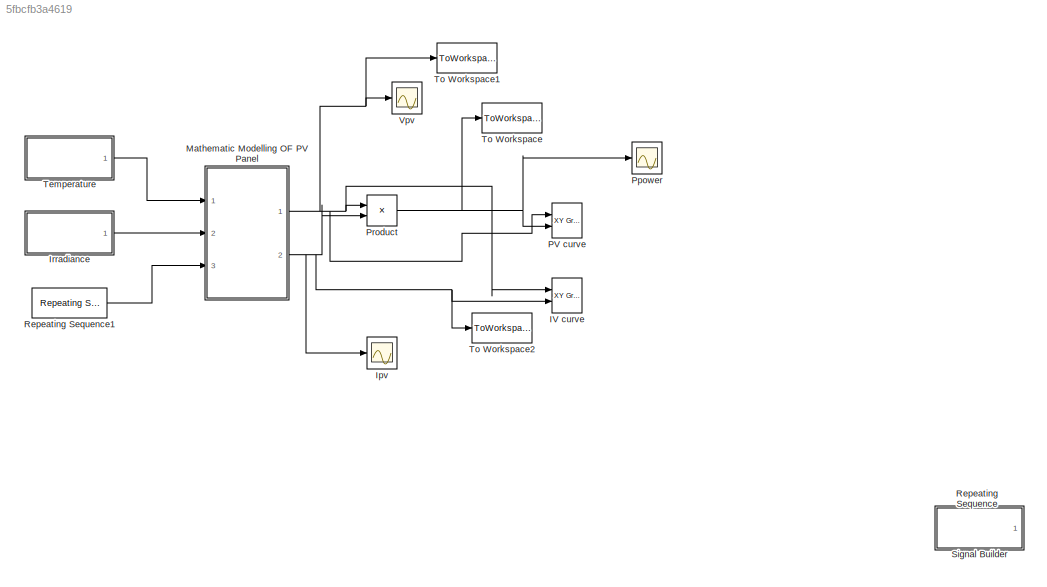
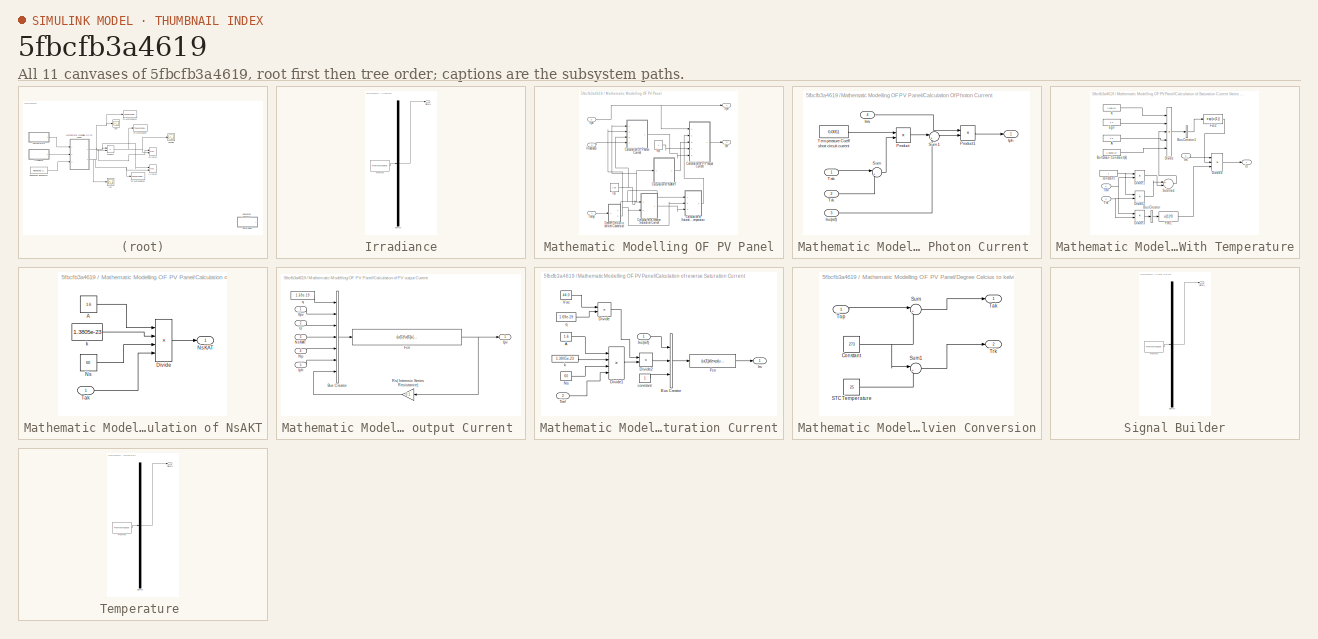
[diagram: thumbnail index - all 11 canvases of the model, root first then tree order]
MODEL slx_5fbcfb3a4619
KIND model
BLOCK [Reference] IV curve  REF=simulink/Sinks/XY Graph
  Ports = [2]
  SourceBlock = simulink/Sinks/XY Graph
  SourceType = XY scope.
  st = -1
  xmax = 1
  xmin = -1
  ymax = 1
  ymin = -1
BLOCK [Scope] Ipv
  Floating = off
  NumInputPorts = 1
  Ports = [1]
  SaveName = ScopeData1
  ShowLegends = off
BLOCK [SubSystem] Irradiance
  ClipboardFcn = sigbuilder_block('clipboard');
  CloseFcn = sigbuilder_block('close');
  ContinueFcn = sigbuilder_block('continue');
  CopyFcn = sigbuilder_block('copy');
  DeleteFcn = sigbuilder_block('delete');
  LoadFcn = sigbuilder_block('load');
  MaskHideContents = on
  ModelCloseFcn = sigbuilder_block('modelClose');
  NameChangeFcn = sigbuilder_block('namechange');
  OpenFcn = sigbuilder_block('open',[441 189.75 543 385.5 ]);
  PauseFcn = sigbuilder_block('pause');
  Ports = [0, 1]
  PreSaveFcn = sigbuilder_block('preSave');
  RequestExecContextInheritance = off
  StartFcn = sigbuilder_block('start');
  StopFcn = sigbuilder_block('stop');
  Tag = STV Subsys
BLOCK [Demux] Irradiance/Demux
  Outputs = 1
  Ports = [1, 1]
  Tag = STV Demux
BLOCK [FromWorkspace] Irradiance/FromWs
  SampleTime = 0
  Tag = STV FromWs
  VariableName = tuvar
  ZeroCross = on
BLOCK [Outport] Irradiance/Signal 1
  IconDisplay = Port number
  Tag = STV Outport
BLOCK [SubSystem] Mathematic Modelling OF PV Panel
  Ports = [3, 2]
  RequestExecContextInheritance = off
BLOCK [SubSystem] Mathematic Modelling OF PV Panel/Calculation Of Photon Current 
  Ports = [4, 1]
  RequestExecContextInheritance = off
BLOCK [Outport] Mathematic Modelling OF PV Panel/Calculation Of Photon Current /Iph
  IconDisplay = Port number
BLOCK [Inport] Mathematic Modelling OF PV Panel/Calculation Of Photon Current /Irra
  IconDisplay = Port number
  Port = 4
BLOCK [Inport] Mathematic Modelling OF PV Panel/Calculation Of Photon Current /Isc(ref)
  IconDisplay = Port number
  Port = 3
BLOCK [Product] Mathematic Modelling OF PV Panel/Calculation Of Photon Current /Product
  InputSameDT = off
  OutDataTypeStr = Inherit: Inherit via internal rule
  Ports = [2, 1]
  RndMeth = Floor
  SaturateOnIntegerOverflow = off
BLOCK [Product] Mathematic Modelling OF PV Panel/Calculation Of Photon Current /Product1
  InputSameDT = off
  OutDataTypeStr = Inherit: Inherit via internal rule
  Ports = [2, 1]
  RndMeth = Floor
  SaturateOnIntegerOverflow = off
BLOCK [Sum] Mathematic Modelling OF PV Panel/Calculation Of Photon Current /Sum
  IconShape = round
  InputSameDT = off
  Inputs = |+-
  OutDataTypeStr = Inherit: Inherit via internal rule
  Ports = [2, 1]
  SaturateOnIntegerOverflow = off
BLOCK [Sum] Mathematic Modelling OF PV Panel/Calculation Of Photon Current /Sum1
  IconShape = round
  InputSameDT = off
  Inputs = |++
  OutDataTypeStr = Inherit: Inherit via internal rule
  Ports = [2, 1]
  SaturateOnIntegerOverflow = off
BLOCK [Inport] Mathematic Modelling OF PV Panel/Calculation Of Photon Current /Tak
  IconDisplay = Port number
BLOCK [Constant] Mathematic Modelling OF PV Panel/Calculation Of Photon Current /Temperature Coeff short circuit current 
  Value = 0.0051
BLOCK [Inport] Mathematic Modelling OF PV Panel/Calculation Of Photon Current /Trk
  IconDisplay = Port number
  Port = 2
BLOCK [SubSystem] Mathematic Modelling OF PV Panel/Calculation of NsAKT
  Ports = [1, 1]
  RequestExecContextInheritance = off
BLOCK [Constant] Mathematic Modelling OF PV Panel/Calculation of NsAKT/A
  Value = 1.6
BLOCK [Product] Mathematic Modelling OF PV Panel/Calculation of NsAKT/Divide
  InputSameDT = off
  Inputs = ****
  OutDataTypeStr = Inherit: Inherit via internal rule
  Ports = [4, 1]
  RndMeth = Floor
  SaturateOnIntegerOverflow = off
BLOCK [Constant] Mathematic Modelling OF PV Panel/Calculation of NsAKT/Ns
  Value = 60
BLOCK [Outport] Mathematic Modelling OF PV Panel/Calculation of NsAKT/NsKAT
  IconDisplay = Port number
BLOCK [Inport] Mathematic Modelling OF PV Panel/Calculation of NsAKT/Tak 
  IconDisplay = Port number
BLOCK [Constant] Mathematic Modelling OF PV Panel/Calculation of NsAKT/k
  Value = 1.3805e-23
BLOCK [SubSystem] Mathematic Modelling OF PV Panel/Calculation of PV output Current 
  Ports = [5, 1]
  RequestExecContextInheritance = off
BLOCK [BusCreator] Mathematic Modelling OF PV Panel/Calculation of PV output Current /Bus Creator
  DisplayOption = bar
  Inputs = 7
  Ports = [7, 1]
BLOCK [Fcn] Mathematic Modelling OF PV Panel/Calculation of PV output Current /Fcn
  Expr = (u(5)*u(6))-(u(5)*u(3)*(exp((u(1)*(u(2)+u(7)))/(u(4))-1)
BLOCK [Inport] Mathematic Modelling OF PV Panel/Calculation of PV output Current /Iph
  IconDisplay = Port number
  Port = 5
BLOCK [Outport] Mathematic Modelling OF PV Panel/Calculation of PV output Current /Ipv 
  IconDisplay = Port number
BLOCK [Inport] Mathematic Modelling OF PV Panel/Calculation of PV output Current /Is
  IconDisplay = Port number
  Port = 2
BLOCK [Inport] Mathematic Modelling OF PV Panel/Calculation of PV output Current /Np
  IconDisplay = Port number
  Port = 4
BLOCK [Inport] Mathematic Modelling OF PV Panel/Calculation of PV output Current /NsKAT
  IconDisplay = Port number
  Port = 3
BLOCK [Gain] Mathematic Modelling OF PV Panel/Calculation of PV output Current /Rs( Internsic Series Resistance)
  Gain = 0.1
  OutDataTypeStr = Inherit: Inherit via internal rule
  ParamDataTypeStr = Inherit: Inherit via internal rule
  SaturateOnIntegerOverflow = off
BLOCK [Inport] Mathematic Modelling OF PV Panel/Calculation of PV output Current /Vpv
  IconDisplay = Port number
BLOCK [Constant] Mathematic Modelling OF PV Panel/Calculation of PV output Current /q
  Value = 1.69e-19
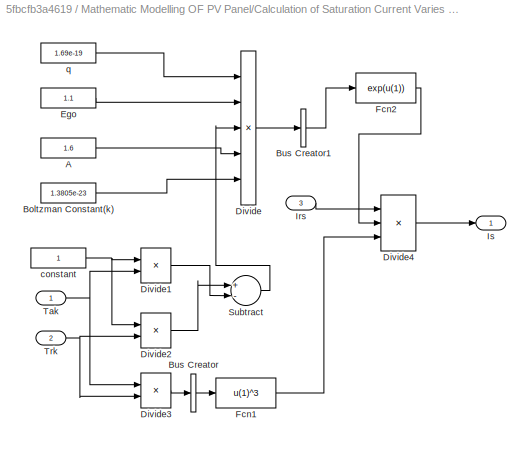
BLOCK [SubSystem] Mathematic Modelling OF PV Panel/Calculation of Saturation Current Varies With Temperature
  Ports = [3, 1]
  RequestExecContextInheritance = off
BLOCK [Constant] Mathematic Modelling OF PV Panel/Calculation of Saturation Current Varies With Temperature/A 
  Value = 1.6
BLOCK [Constant] Mathematic Modelling OF PV Panel/Calculation of Saturation Current Varies With Temperature/Boltzman Constant(k)
  Value = 1.3805e-23
BLOCK [BusCreator] Mathematic Modelling OF PV Panel/Calculation of Saturation Current Varies With Temperature/Bus Creator
  DisplayOption = bar
  Inputs = 1
  Ports = [1, 1]
BLOCK [BusCreator] Mathematic Modelling OF PV Panel/Calculation of Saturation Current Varies With Temperature/Bus Creator1
  DisplayOption = bar
  Inputs = 1
  Ports = [1, 1]
BLOCK [Product] Mathematic Modelling OF PV Panel/Calculation of Saturation Current Varies With Temperature/Divide
  InputSameDT = off
  Inputs = ***//
  OutDataTypeStr = Inherit: Inherit via internal rule
  Ports = [5, 1]
  RndMeth = Floor
  SaturateOnIntegerOverflow = off
BLOCK [Product] Mathematic Modelling OF PV Panel/Calculation of Saturation Current Varies With Temperature/Divide1
  InputSameDT = off
  Inputs = */
  OutDataTypeStr = Inherit: Inherit via internal rule
  Ports = [2, 1]
  RndMeth = Floor
  SaturateOnIntegerOverflow = off
BLOCK [Product] Mathematic Modelling OF PV Panel/Calculation of Saturation Current Varies With Temperature/Divide2
  InputSameDT = off
  Inputs = */
  OutDataTypeStr = Inherit: Inherit via internal rule
  Ports = [2, 1]
  RndMeth = Floor
  SaturateOnIntegerOverflow = off
BLOCK [Product] Mathematic Modelling OF PV Panel/Calculation of Saturation Current Varies With Temperature/Divide3
  InputSameDT = off
  Inputs = */
  OutDataTypeStr = Inherit: Inherit via internal rule
  Ports = [2, 1]
  RndMeth = Floor
  SaturateOnIntegerOverflow = off
BLOCK [Product] Mathematic Modelling OF PV Panel/Calculation of Saturation Current Varies With Temperature/Divide4
  InputSameDT = off
  Inputs = ***
  OutDataTypeStr = Inherit: Inherit via internal rule
  Ports = [3, 1]
  RndMeth = Floor
  SaturateOnIntegerOverflow = off
BLOCK [Constant] Mathematic Modelling OF PV Panel/Calculation of Saturation Current Varies With Temperature/Ego
  Value = 1.1
BLOCK [Fcn] Mathematic Modelling OF PV Panel/Calculation of Saturation Current Varies With Temperature/Fcn1
  Expr = u(1)^3
BLOCK [Fcn] Mathematic Modelling OF PV Panel/Calculation of Saturation Current Varies With Temperature/Fcn2
  Expr = exp(u(1))
BLOCK [Inport] Mathematic Modelling OF PV Panel/Calculation of Saturation Current Varies With Temperature/Irs 
  IconDisplay = Port number
  Port = 3
BLOCK [Outport] Mathematic Modelling OF PV Panel/Calculation of Saturation Current Varies With Temperature/Is
  IconDisplay = Port number
BLOCK [Sum] Mathematic Modelling OF PV Panel/Calculation of Saturation Current Varies With Temperature/Subtract
  InputSameDT = off
  Inputs = +-
  OutDataTypeStr = Inherit: Inherit via internal rule
  Ports = [2, 1]
  SaturateOnIntegerOverflow = off
BLOCK [Inport] Mathematic Modelling OF PV Panel/Calculation of Saturation Current Varies With Temperature/Tak
  IconDisplay = Port number
BLOCK [Inport] Mathematic Modelling OF PV Panel/Calculation of Saturation Current Varies With Temperature/Trk 
  IconDisplay = Port number
  Port = 2
BLOCK [Constant] Mathematic Modelling OF PV Panel/Calculation of Saturation Current Varies With Temperature/constant 
BLOCK [Constant] Mathematic Modelling OF PV Panel/Calculation of Saturation Current Varies With Temperature/q 
  Value = 1.69e-19
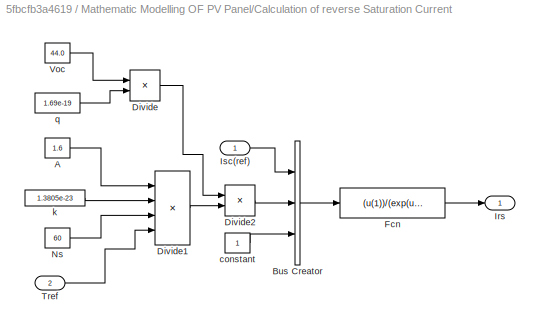
BLOCK [SubSystem] Mathematic Modelling OF PV Panel/Calculation of reverse Saturation Current
  Ports = [2, 1]
  RequestExecContextInheritance = off
BLOCK [Constant] Mathematic Modelling OF PV Panel/Calculation of reverse Saturation Current/A
  Value = 1.6
BLOCK [BusCreator] Mathematic Modelling OF PV Panel/Calculation of reverse Saturation Current/Bus Creator
  DisplayOption = bar
  Inputs = 3
  Ports = [3, 1]
BLOCK [Product] Mathematic Modelling OF PV Panel/Calculation of reverse Saturation Current/Divide
  InputSameDT = off
  Inputs = **
  OutDataTypeStr = Inherit: Inherit via internal rule
  Ports = [2, 1]
  RndMeth = Floor
  SaturateOnIntegerOverflow = off
BLOCK [Product] Mathematic Modelling OF PV Panel/Calculation of reverse Saturation Current/Divide1
  InputSameDT = off
  Inputs = ****
  OutDataTypeStr = Inherit: Inherit via internal rule
  Ports = [4, 1]
  RndMeth = Floor
  SaturateOnIntegerOverflow = off
BLOCK [Product] Mathematic Modelling OF PV Panel/Calculation of reverse Saturation Current/Divide2
  InputSameDT = off
  Inputs = */
  OutDataTypeStr = Inherit: Inherit via internal rule
  Ports = [2, 1]
  RndMeth = Floor
  SaturateOnIntegerOverflow = off
BLOCK [Fcn] Mathematic Modelling OF PV Panel/Calculation of reverse Saturation Current/Fcn
  Expr = (u(1))/(exp(u(2))-u(3))
BLOCK [Outport] Mathematic Modelling OF PV Panel/Calculation of reverse Saturation Current/Irs
  IconDisplay = Port number
BLOCK [Inport] Mathematic Modelling OF PV Panel/Calculation of reverse Saturation Current/Isc(ref) 
  IconDisplay = Port number
BLOCK [Constant] Mathematic Modelling OF PV Panel/Calculation of reverse Saturation Current/Ns
  Value = 60
BLOCK [Inport] Mathematic Modelling OF PV Panel/Calculation of reverse Saturation Current/Tref 
  IconDisplay = Port number
  Port = 2
BLOCK [Constant] Mathematic Modelling OF PV Panel/Calculation of reverse Saturation Current/Voc
  Value = 44.0
BLOCK [Constant] Mathematic Modelling OF PV Panel/Calculation of reverse Saturation Current/constant 
BLOCK [Constant] Mathematic Modelling OF PV Panel/Calculation of reverse Saturation Current/k
  Value = 1.3805e-23
BLOCK [Constant] Mathematic Modelling OF PV Panel/Calculation of reverse Saturation Current/q
  Value = 1.69e-19
BLOCK [SubSystem] Mathematic Modelling OF PV Panel/Degree Celcius to kelvien Conversion
  Ports = [1, 2]
  RequestExecContextInheritance = off
BLOCK [Constant] Mathematic Modelling OF PV Panel/Degree Celcius to kelvien Conversion/Constant
  Value = 273
BLOCK [Constant] Mathematic Modelling OF PV Panel/Degree Celcius to kelvien Conversion/STC Temperature
  Value = 25
BLOCK [Sum] Mathematic Modelling OF PV Panel/Degree Celcius to kelvien Conversion/Sum
  IconShape = round
  InputSameDT = off
  Inputs = |++
  OutDataTypeStr = Inherit: Inherit via internal rule
  Ports = [2, 1]
  SaturateOnIntegerOverflow = off
BLOCK [Sum] Mathematic Modelling OF PV Panel/Degree Celcius to kelvien Conversion/Sum1
  IconShape = round
  InputSameDT = off
  Inputs = |++
  OutDataTypeStr = Inherit: Inherit via internal rule
  Ports = [2, 1]
  SaturateOnIntegerOverflow = off
BLOCK [Outport] Mathematic Modelling OF PV Panel/Degree Celcius to kelvien Conversion/Tak
  IconDisplay = Port number
BLOCK [Inport] Mathematic Modelling OF PV Panel/Degree Celcius to kelvien Conversion/Top 
  IconDisplay = Port number
BLOCK [Outport] Mathematic Modelling OF PV Panel/Degree Celcius to kelvien Conversion/Trk
  IconDisplay = Port number
  Port = 2
BLOCK [Outport] Mathematic Modelling OF PV Panel/Ipv
  IconDisplay = Port number
  Port = 2
BLOCK [Inport] Mathematic Modelling OF PV Panel/Irradiance
  IconDisplay = Port number
  Port = 2
BLOCK [Constant] Mathematic Modelling OF PV Panel/Isc
  Value = 7.58
BLOCK [Constant] Mathematic Modelling OF PV Panel/Np
BLOCK [Inport] Mathematic Modelling OF PV Panel/Temp
  IconDisplay = Port number
BLOCK [Inport] Mathematic Modelling OF PV Panel/Vpv
  IconDisplay = Port number
  Port = 3
BLOCK [Outport] Mathematic Modelling OF PV Panel/Vpv 
  IconDisplay = Port number
BLOCK [Reference] PV curve  REF=simulink/Sinks/XY Graph
  Ports = [2]
  SourceBlock = simulink/Sinks/XY Graph
  SourceType = XY scope.
  st = -1
  xmax = 1
  xmin = -1
  ymax = 1
  ymin = -1
BLOCK [Scope] Ppower 
  Floating = off
  NumInputPorts = 1
  Ports = [1]
  SaveName = ScopeData2
  ShowLegends = off
BLOCK [Product] Product
  InputSameDT = off
  OutDataTypeStr = Inherit: Inherit via internal rule
  Ports = [2, 1]
  RndMeth = Floor
  SaturateOnIntegerOverflow = off
BLOCK [Reference] Repeating Sequence  REF=simulink/Sources/Repeating
Sequence
  Ports = [0, 1]
  SourceBlock = simulink/Sources/Repeating\nSequence
  SourceType = Repeating table
  rep_seq_t = [0 2]
  rep_seq_y = [0 2]
BLOCK [Reference] Repeating Sequence1  REF=simulink/Sources/Repeating
Sequence
  Ports = [0, 1]
  SourceBlock = simulink/Sources/Repeating\nSequence
  SourceType = Repeating table
  rep_seq_t = [0 2]
  rep_seq_y = [0 2]
BLOCK [SubSystem] Signal Builder
  ClipboardFcn = sigbuilder_block('clipboard');
  CloseFcn = sigbuilder_block('close');
  ContinueFcn = sigbuilder_block('continue');
  CopyFcn = sigbuilder_block('copy');
  DeleteFcn = sigbuilder_block('delete');
  LoadFcn = sigbuilder_block('load');
  MaskHideContents = on
  ModelCloseFcn = sigbuilder_block('modelClose');
  NameChangeFcn = sigbuilder_block('namechange');
  OpenFcn = sigbuilder_block('open',[437.6 199.2 550.4 400 ]);
  PauseFcn = sigbuilder_block('pause');
  Ports = [0, 1]
  PreSaveFcn = sigbuilder_block('preSave');
  RequestExecContextInheritance = off
  StartFcn = sigbuilder_block('start');
  StopFcn = sigbuilder_block('stop');
  Tag = STV Subsys
BLOCK [Demux] Signal Builder/Demux
  Outputs = 1
  Ports = [1, 1]
  Tag = STV Demux
BLOCK [FromWorkspace] Signal Builder/FromWs
  SampleTime = 0
  Tag = STV FromWs
  VariableName = tuvar
  ZeroCross = on
BLOCK [Outport] Signal Builder/Signal 1
  IconDisplay = Port number
  Tag = STV Outport
BLOCK [SubSystem] Temperature 
  ClipboardFcn = sigbuilder_block('clipboard');
  CloseFcn = sigbuilder_block('close');
  ContinueFcn = sigbuilder_block('continue');
  CopyFcn = sigbuilder_block('copy');
  DeleteFcn = sigbuilder_block('delete');
  LoadFcn = sigbuilder_block('load');
  MaskHideContents = on
  ModelCloseFcn = sigbuilder_block('modelClose');
  NameChangeFcn = sigbuilder_block('namechange');
  OpenFcn = sigbuilder_block('open',[351 -51.75 543 385.5 ]);
  PauseFcn = sigbuilder_block('pause');
  Ports = [0, 1]
  PreSaveFcn = sigbuilder_block('preSave');
  RequestExecContextInheritance = off
  StartFcn = sigbuilder_block('start');
  StopFcn = sigbuilder_block('stop');
  Tag = STV Subsys
BLOCK [Demux] Temperature /Demux
  Outputs = 1
  Ports = [1, 1]
  Tag = STV Demux
BLOCK [FromWorkspace] Temperature /FromWs
  SampleTime = 0
  Tag = STV FromWs
  VariableName = tuvar
  ZeroCross = on
BLOCK [Outport] Temperature /Signal 1
  IconDisplay = Port number
  Tag = STV Outport
BLOCK [ToWorkspace] To Workspace
  FixptAsFi = on
  MaxDataPoints = inf
  Ports = [1]
  SampleTime = -1
  Save2DSignal = 3-D array (concatenate along third dimension)
  SaveFormat = Timeseries
  VariableName = Ppv
BLOCK [ToWorkspace] To Workspace1
  FixptAsFi = on
  MaxDataPoints = inf
  Ports = [1]
  SampleTime = -1
  Save2DSignal = 3-D array (concatenate along third dimension)
  SaveFormat = Timeseries
  VariableName = Vpv
BLOCK [ToWorkspace] To Workspace2
  FixptAsFi = on
  MaxDataPoints = inf
  Ports = [1]
  SampleTime = -1
  Save2DSignal = 3-D array (concatenate along third dimension)
  SaveFormat = Timeseries
  VariableName = Ipv
BLOCK [Scope] Vpv
  Floating = off
  NumInputPorts = 1
  Ports = [1]
  ShowLegends = off
LINE Irradiance:1 -> Mathematic Modelling OF PV Panel:2
LINE Mathematic Modelling OF PV Panel/Calculation Of Photon Current /Irra:1 -> Mathematic Modelling OF PV Panel/Calculation Of Photon Current /Product1:1
LINE Mathematic Modelling OF PV Panel/Calculation Of Photon Current /Isc(ref):1 -> Mathematic Modelling OF PV Panel/Calculation Of Photon Current /Sum1:2
LINE Mathematic Modelling OF PV Panel/Calculation Of Photon Current /Product1:1 -> Mathematic Modelling OF PV Panel/Calculation Of Photon Current /Iph:1
LINE Mathematic Modelling OF PV Panel/Calculation Of Photon Current /Product:1 -> Mathematic Modelling OF PV Panel/Calculation Of Photon Current /Sum1:1
LINE Mathematic Modelling OF PV Panel/Calculation Of Photon Current /Sum1:1 -> Mathematic Modelling OF PV Panel/Calculation Of Photon Current /Product1:2
LINE Mathematic Modelling OF PV Panel/Calculation Of Photon Current /Sum:1 -> Mathematic Modelling OF PV Panel/Calculation Of Photon Current /Product:2
LINE Mathematic Modelling OF PV Panel/Calculation Of Photon Current /Tak:1 -> Mathematic Modelling OF PV Panel/Calculation Of Photon Current /Sum:1
LINE Mathematic Modelling OF PV Panel/Calculation Of Photon Current /Temperature Coeff short circuit current :1 -> Mathematic Modelling OF PV Panel/Calculation Of Photon Current /Product:1
LINE Mathematic Modelling OF PV Panel/Calculation Of Photon Current /Trk:1 -> Mathematic Modelling OF PV Panel/Calculation Of Photon Current /Sum:2
LINE Mathematic Modelling OF PV Panel/Calculation Of Photon Current :1 -> Mathematic Modelling OF PV Panel/Calculation of PV output Current :5
LINE Mathematic Modelling OF PV Panel/Calculation of NsAKT/A:1 -> Mathematic Modelling OF PV Panel/Calculation of NsAKT/Divide:1
LINE Mathematic Modelling OF PV Panel/Calculation of NsAKT/Divide:1 -> Mathematic Modelling OF PV Panel/Calculation of NsAKT/NsKAT:1
LINE Mathematic Modelling OF PV Panel/Calculation of NsAKT/Ns:1 -> Mathematic Modelling OF PV Panel/Calculation of NsAKT/Divide:3
LINE Mathematic Modelling OF PV Panel/Calculation of NsAKT/Tak :1 -> Mathematic Modelling OF PV Panel/Calculation of NsAKT/Divide:4
LINE Mathematic Modelling OF PV Panel/Calculation of NsAKT/k:1 -> Mathematic Modelling OF PV Panel/Calculation of NsAKT/Divide:2
LINE Mathematic Modelling OF PV Panel/Calculation of NsAKT:1 -> Mathematic Modelling OF PV Panel/Calculation of PV output Current :3
LINE Mathematic Modelling OF PV Panel/Calculation of PV output Current /Bus Creator:1 -> Mathematic Modelling OF PV Panel/Calculation of PV output Current /Fcn:1
NET Mathematic Modelling OF PV Panel/Calculation of PV output Current /Fcn:1 -> Mathematic Modelling OF PV Panel/Calculation of PV output Current /Ipv :1, Mathematic Modelling OF PV Panel/Calculation of PV output Current /Rs( Internsic Series Resistance):1
LINE Mathematic Modelling OF PV Panel/Calculation of PV output Current /Iph:1 -> Mathematic Modelling OF PV Panel/Calculation of PV output Current /Bus Creator:6
LINE Mathematic Modelling OF PV Panel/Calculation of PV output Current /Is:1 -> Mathematic Modelling OF PV Panel/Calculation of PV output Current /Bus Creator:3
LINE Mathematic Modelling OF PV Panel/Calculation of PV output Current /Np:1 -> Mathematic Modelling OF PV Panel/Calculation of PV output Current /Bus Creator:5
LINE Mathematic Modelling OF PV Panel/Calculation of PV output Current /NsKAT:1 -> Mathematic Modelling OF PV Panel/Calculation of PV output Current /Bus Creator:4
LINE Mathematic Modelling OF PV Panel/Calculation of PV output Current /Rs( Internsic Series Resistance):1 -> Mathematic Modelling OF PV Panel/Calculation of PV output Current /Bus Creator:7
LINE Mathematic Modelling OF PV Panel/Calculation of PV output Current /Vpv:1 -> Mathematic Modelling OF PV Panel/Calculation of PV output Current /Bus Creator:2
LINE Mathematic Modelling OF PV Panel/Calculation of PV output Current /q:1 -> Mathematic Modelling OF PV Panel/Calculation of PV output Current /Bus Creator:1
LINE Mathematic Modelling OF PV Panel/Calculation of PV output Current :1 -> Mathematic Modelling OF PV Panel/Ipv:1
LINE Mathematic Modelling OF PV Panel/Calculation of Saturation Current Varies With Temperature/A :1 -> Mathematic Modelling OF PV Panel/Calculation of Saturation Current Varies With Temperature/Divide:4
LINE Mathematic Modelling OF PV Panel/Calculation of Saturation Current Varies With Temperature/Boltzman Constant(k):1 -> Mathematic Modelling OF PV Panel/Calculation of Saturation Current Varies With Temperature/Divide:5
LINE Mathematic Modelling OF PV Panel/Calculation of Saturation Current Varies With Temperature/Bus Creator1:1 -> Mathematic Modelling OF PV Panel/Calculation of Saturation Current Varies With Temperature/Fcn2:1
LINE Mathematic Modelling OF PV Panel/Calculation of Saturation Current Varies With Temperature/Bus Creator:1 -> Mathematic Modelling OF PV Panel/Calculation of Saturation Current Varies With Temperature/Fcn1:1
LINE Mathematic Modelling OF PV Panel/Calculation of Saturation Current Varies With Temperature/Divide1:1 -> Mathematic Modelling OF PV Panel/Calculation of Saturation Current Varies With Temperature/Subtract:2
LINE Mathematic Modelling OF PV Panel/Calculation of Saturation Current Varies With Temperature/Divide2:1 -> Mathematic Modelling OF PV Panel/Calculation of Saturation Current Varies With Temperature/Subtract:1
LINE Mathematic Modelling OF PV Panel/Calculation of Saturation Current Varies With Temperature/Divide3:1 -> Mathematic Modelling OF PV Panel/Calculation of Saturation Current Varies With Temperature/Bus Creator:1
LINE Mathematic Modelling OF PV Panel/Calculation of Saturation Current Varies With Temperature/Divide4:1 -> Mathematic Modelling OF PV Panel/Calculation of Saturation Current Varies With Temperature/Is:1
LINE Mathematic Modelling OF PV Panel/Calculation of Saturation Current Varies With Temperature/Divide:1 -> Mathematic Modelling OF PV Panel/Calculation of Saturation Current Varies With Temperature/Bus Creator1:1
LINE Mathematic Modelling OF PV Panel/Calculation of Saturation Current Varies With Temperature/Ego:1 -> Mathematic Modelling OF PV Panel/Calculation of Saturation Current Varies With Temperature/Divide:2
LINE Mathematic Modelling OF PV Panel/Calculation of Saturation Current Varies With Temperature/Fcn1:1 -> Mathematic Modelling OF PV Panel/Calculation of Saturation Current Varies With Temperature/Divide4:3
LINE Mathematic Modelling OF PV Panel/Calculation of Saturation Current Varies With Temperature/Fcn2:1 -> Mathematic Modelling OF PV Panel/Calculation of Saturation Current Varies With Temperature/Divide4:2
LINE Mathematic Modelling OF PV Panel/Calculation of Saturation Current Varies With Temperature/Irs :1 -> Mathematic Modelling OF PV Panel/Calculation of Saturation Current Varies With Temperature/Divide4:1
LINE Mathematic Modelling OF PV Panel/Calculation of Saturation Current Varies With Temperature/Subtract:1 -> Mathematic Modelling OF PV Panel/Calculation of Saturation Current Varies With Temperature/Divide:3
NET Mathematic Modelling OF PV Panel/Calculation of Saturation Current Varies With Temperature/Tak:1 -> Mathematic Modelling OF PV Panel/Calculation of Saturation Current Varies With Temperature/Divide1:2, Mathematic Modelling OF PV Panel/Calculation of Saturation Current Varies With Temperature/Divide3:1
NET Mathematic Modelling OF PV Panel/Calculation of Saturation Current Varies With Temperature/Trk :1 -> Mathematic Modelling OF PV Panel/Calculation of Saturation Current Varies With Temperature/Divide2:2, Mathematic Modelling OF PV Panel/Calculation of Saturation Current Varies With Temperature/Divide3:2
NET Mathematic Modelling OF PV Panel/Calculation of Saturation Current Varies With Temperature/constant :1 -> Mathematic Modelling OF PV Panel/Calculation of Saturation Current Varies With Temperature/Divide1:1, Mathematic Modelling OF PV Panel/Calculation of Saturation Current Varies With Temperature/Divide2:1
LINE Mathematic Modelling OF PV Panel/Calculation of Saturation Current Varies With Temperature/q :1 -> Mathematic Modelling OF PV Panel/Calculation of Saturation Current Varies With Temperature/Divide:1
LINE Mathematic Modelling OF PV Panel/Calculation of Saturation Current Varies With Temperature:1 -> Mathematic Modelling OF PV Panel/Calculation of PV output Current :2
LINE Mathematic Modelling OF PV Panel/Calculation of reverse Saturation Current/A:1 -> Mathematic Modelling OF PV Panel/Calculation of reverse Saturation Current/Divide1:1
LINE Mathematic Modelling OF PV Panel/Calculation of reverse Saturation Current/Bus Creator:1 -> Mathematic Modelling OF PV Panel/Calculation of reverse Saturation Current/Fcn:1
LINE Mathematic Modelling OF PV Panel/Calculation of reverse Saturation Current/Divide1:1 -> Mathematic Modelling OF PV Panel/Calculation of reverse Saturation Current/Divide2:2
LINE Mathematic Modelling OF PV Panel/Calculation of reverse Saturation Current/Divide2:1 -> Mathematic Modelling OF PV Panel/Calculation of reverse Saturation Current/Bus Creator:2
LINE Mathematic Modelling OF PV Panel/Calculation of reverse Saturation Current/Divide:1 -> Mathematic Modelling OF PV Panel/Calculation of reverse Saturation Current/Divide2:1
LINE Mathematic Modelling OF PV Panel/Calculation of reverse Saturation Current/Fcn:1 -> Mathematic Modelling OF PV Panel/Calculation of reverse Saturation Current/Irs:1
LINE Mathematic Modelling OF PV Panel/Calculation of reverse Saturation Current/Isc(ref) :1 -> Mathematic Modelling OF PV Panel/Calculation of reverse Saturation Current/Bus Creator:1
LINE Mathematic Modelling OF PV Panel/Calculation of reverse Saturation Current/Ns:1 -> Mathematic Modelling OF PV Panel/Calculation of reverse Saturation Current/Divide1:3
LINE Mathematic Modelling OF PV Panel/Calculation of reverse Saturation Current/Tref :1 -> Mathematic Modelling OF PV Panel/Calculation of reverse Saturation Current/Divide1:4
LINE Mathematic Modelling OF PV Panel/Calculation of reverse Saturation Current/Voc:1 -> Mathematic Modelling OF PV Panel/Calculation of reverse Saturation Current/Divide:1
LINE Mathematic Modelling OF PV Panel/Calculation of reverse Saturation Current/constant :1 -> Mathematic Modelling OF PV Panel/Calculation of reverse Saturation Current/Bus Creator:3
LINE Mathematic Modelling OF PV Panel/Calculation of reverse Saturation Current/k:1 -> Mathematic Modelling OF PV Panel/Calculation of reverse Saturation Current/Divide1:2
LINE Mathematic Modelling OF PV Panel/Calculation of reverse Saturation Current/q:1 -> Mathematic Modelling OF PV Panel/Calculation of reverse Saturation Current/Divide:2
LINE Mathematic Modelling OF PV Panel/Calculation of reverse Saturation Current:1 -> Mathematic Modelling OF PV Panel/Calculation of Saturation Current Varies With Temperature:3
NET Mathematic Modelling OF PV Panel/Degree Celcius to kelvien Conversion/Constant:1 -> Mathematic Modelling OF PV Panel/Degree Celcius to kelvien Conversion/Sum1:1, Mathematic Modelling OF PV Panel/Degree Celcius to kelvien Conversion/Sum:2
LINE Mathematic Modelling OF PV Panel/Degree Celcius to kelvien Conversion/STC Temperature:1 -> Mathematic Modelling OF PV Panel/Degree Celcius to kelvien Conversion/Sum1:2
LINE Mathematic Modelling OF PV Panel/Degree Celcius to kelvien Conversion/Sum1:1 -> Mathematic Modelling OF PV Panel/Degree Celcius to kelvien Conversion/Trk:1
LINE Mathematic Modelling OF PV Panel/Degree Celcius to kelvien Conversion/Sum:1 -> Mathematic Modelling OF PV Panel/Degree Celcius to kelvien Conversion/Tak:1
LINE Mathematic Modelling OF PV Panel/Degree Celcius to kelvien Conversion/Top :1 -> Mathematic Modelling OF PV Panel/Degree Celcius to kelvien Conversion/Sum:1
NET Mathematic Modelling OF PV Panel/Degree Celcius to kelvien Conversion:1 -> Mathematic Modelling OF PV Panel/Calculation Of Photon Current :1, Mathematic Modelling OF PV Panel/Calculation of NsAKT:1, Mathematic Modelling OF PV Panel/Calculation of Saturation Current Varies With Temperature:1
NET Mathematic Modelling OF PV Panel/Degree Celcius to kelvien Conversion:2 -> Mathematic Modelling OF PV Panel/Calculation Of Photon Current :2, Mathematic Modelling OF PV Panel/Calculation of Saturation Current Varies With Temperature:2, Mathematic Modelling OF PV Panel/Calculation of reverse Saturation Current:2
LINE Mathematic Modelling OF PV Panel/Irradiance:1 -> Mathematic Modelling OF PV Panel/Calculation Of Photon Current :4
NET Mathematic Modelling OF PV Panel/Isc:1 -> Mathematic Modelling OF PV Panel/Calculation Of Photon Current :3, Mathematic Modelling OF PV Panel/Calculation of reverse Saturation Current:1
LINE Mathematic Modelling OF PV Panel/Np:1 -> Mathematic Modelling OF PV Panel/Calculation of PV output Current :4
LINE Mathematic Modelling OF PV Panel/Temp:1 -> Mathematic Modelling OF PV Panel/Degree Celcius to kelvien Conversion:1
NET Mathematic Modelling OF PV Panel/Vpv:1 -> Mathematic Modelling OF PV Panel/Calculation of PV output Current :1, Mathematic Modelling OF PV Panel/Vpv :1
NET Mathematic Modelling OF PV Panel:1 -> IV curve:1, PV curve:1, Product:1, To Workspace1:1, Vpv:1
NET Mathematic Modelling OF PV Panel:2 -> IV curve:2, Ipv:1, Product:2, To Workspace2:1
NET Product:1 -> PV curve:2, Ppower :1, To Workspace:1
LINE Repeating Sequence1:1 -> Mathematic Modelling OF PV Panel:3
LINE Temperature :1 -> Mathematic Modelling OF PV Panel:1
note: NET lines group one-source signal fan-out (src -> all destinations, sorted); 1:1 wires keep LINE
